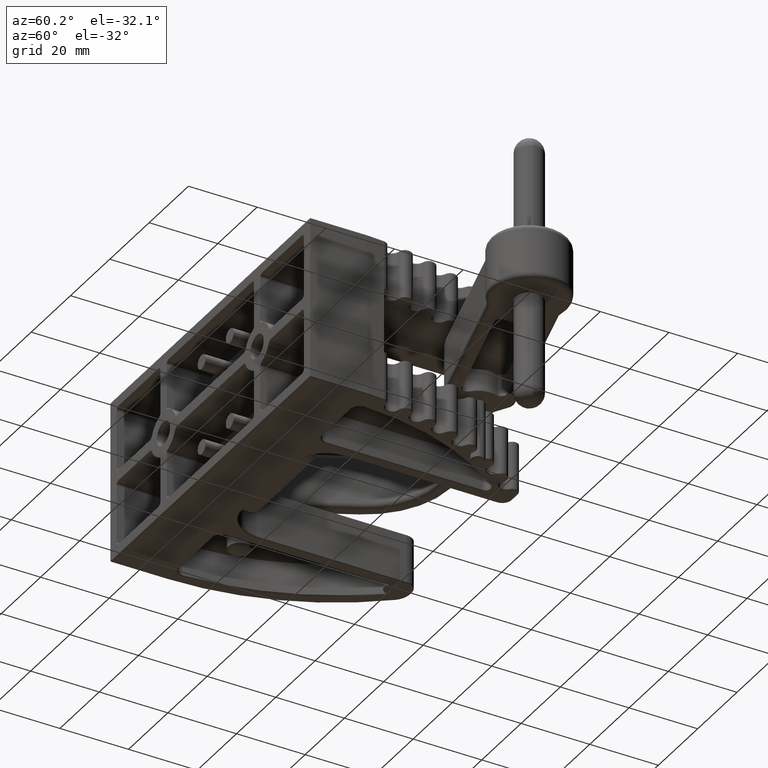
[diagram: clean part render]
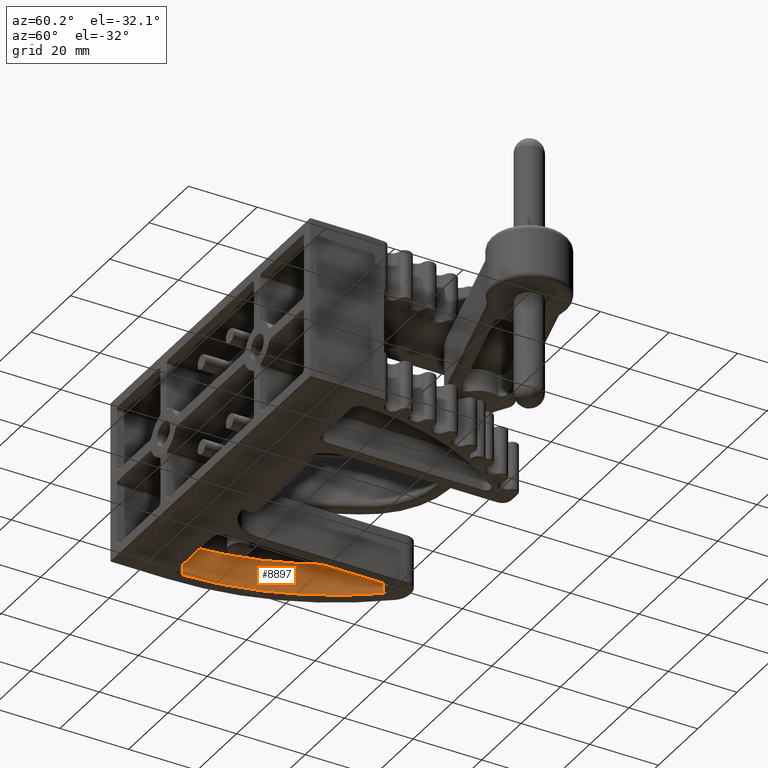
[diagram: same view with one face highlighted and labeled with its STEP entity id]
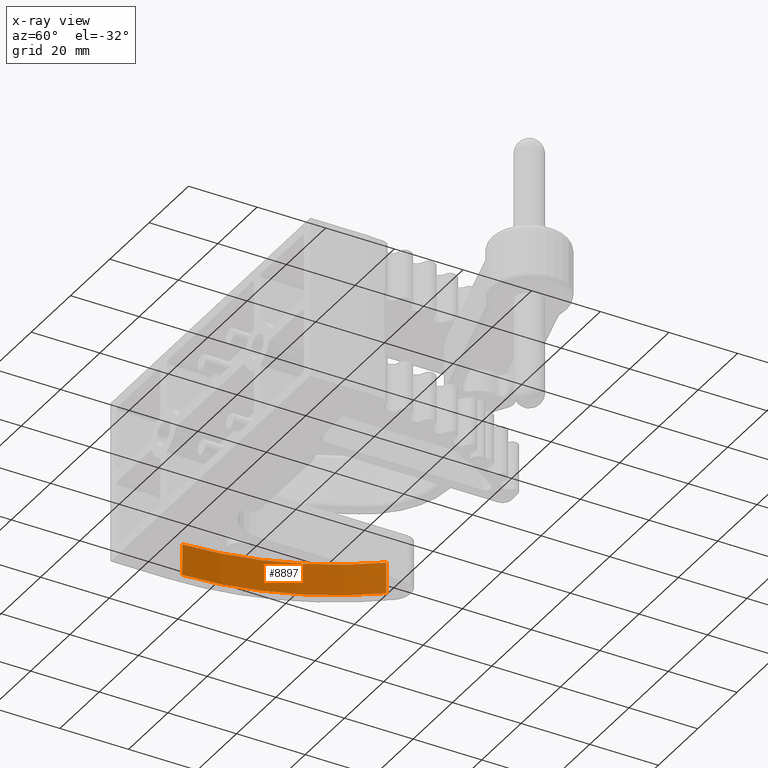
[diagram: x-ray of the same camera — body ghosted, the highlighted face saturated]
A machine part, auxiliary view. The second image highlights one B-rep face of the part: STEP entity #8897.
The next image is the same camera in x-ray: the body ghosted, the highlighted face saturated — about 0% of this face is hidden behind the body in this view.
In plain terms, the highlighted cylindrical surface (partial cylindrical patch) has radius 82.3754 mm, axis along (-0, -0, -1).
Its self-contained STEP definition (entity closure, byte-faithful):
#205 = AXIS2_PLACEMENT_3D ( 'NONE', #24128, #3575, #5852 ) ;
#2331 = VERTEX_POINT ( 'NONE', #9374 ) ;
#3575 = DIRECTION ( 'NONE',  ( -0.0000000000000000000, -0.0000000000000000000, -1.000000000000000000 ) ) ;
#4452 = CYLINDRICAL_SURFACE ( 'NONE', #205, 3.243124999999997400 ) ;
#4776 = ORIENTED_EDGE ( 'NONE', *, *, #24144, .F. ) ;
#4852 = ORIENTED_EDGE ( 'NONE', *, *, #7454, .T. ) ;
#5173 = CARTESIAN_POINT ( 'NONE',  ( -1.873562778400978100, 0.7525407322881523300, -0.5625000000000000000 ) ) ;
#5174 = DIRECTION ( 'NONE',  ( -0.0000000000000000000, -0.0000000000000000000, -1.000000000000000000 ) ) ;
#5233 = EDGE_LOOP ( 'NONE', ( #4852, #23419, #4776, #11330 ) ) ;
#5753 = EDGE_CURVE ( 'NONE', #24070, #2331, #22621, .T. ) ;
#5852 = DIRECTION ( 'NONE',  ( -1.000000000000000000, 0.0000000000000000000, 0.0000000000000000000 ) ) ;
#6471 = LINE ( 'NONE', #5173, #23977 ) ;
#6531 = DIRECTION ( 'NONE',  ( -0.0000000000000000000, -0.0000000000000000000, 1.000000000000000000 ) ) ;
#7454 = EDGE_CURVE ( 'NONE', #7753, #24070, #6471, .T. ) ;
#7588 = CARTESIAN_POINT ( 'NONE',  ( -1.873562778400978100, 0.7525407322881523300, -0.9218749999999998900 ) ) ;
#7753 = VERTEX_POINT ( 'NONE', #22975 ) ;
#7878 = AXIS2_PLACEMENT_3D ( 'NONE', #18888, #5174, #21154 ) ;
#8897 = ADVANCED_FACE ( 'NONE', ( #11224 ), #4452, .F. ) ;
#9374 = CARTESIAN_POINT ( 'NONE',  ( -1.161548471509502800, 2.685436348636255600, -0.9218749999999998900 ) ) ;
#11224 = FACE_OUTER_BOUND ( 'NONE', #5233, .T. ) ;
#11330 = ORIENTED_EDGE ( 'NONE', *, *, #13210, .T. ) ;
#11425 = LINE ( 'NONE', #12277, #27492 ) ;
#12277 = CARTESIAN_POINT ( 'NONE',  ( -1.161548471509502800, 2.685436348636255600, -0.5625000000000000000 ) ) ;
#13210 = EDGE_CURVE ( 'NONE', #15874, #7753, #21981, .T. ) ;
#15874 = VERTEX_POINT ( 'NONE', #28138 ) ;
#18888 = CARTESIAN_POINT ( 'NONE',  ( 1.368124999999995600, 0.6559999999999964700, -0.9218750000000000000 ) ) ;
#20215 = CARTESIAN_POINT ( 'NONE',  ( 1.368124999999995600, 0.6559999999999964700, -0.5625000000000000000 ) ) ;
#21154 = DIRECTION ( 'NONE',  ( 1.000000000000000000, 0.0000000000000000000, 0.0000000000000000000 ) ) ;
#21981 = CIRCLE ( 'NONE', #28550, 3.243124999999997400 ) ;
#22524 = DIRECTION ( 'NONE',  ( 1.000000000000000000, 0.0000000000000000000, 0.0000000000000000000 ) ) ;
#22621 = CIRCLE ( 'NONE', #7878, 3.243124999999997400 ) ;
#22975 = CARTESIAN_POINT ( 'NONE',  ( -1.873562778400978100, 0.7525407322881523300, -0.5625000000000000000 ) ) ;
#23419 = ORIENTED_EDGE ( 'NONE', *, *, #5753, .T. ) ;
#23977 = VECTOR ( 'NONE', #27932, 39.37007874015748100 ) ;
#24070 = VERTEX_POINT ( 'NONE', #7588 ) ;
#24128 = CARTESIAN_POINT ( 'NONE',  ( 1.368124999999995600, 0.6559999999999964700, -0.5625000000000000000 ) ) ;
#24144 = EDGE_CURVE ( 'NONE', #15874, #2331, #11425, .T. ) ;
#27492 = VECTOR ( 'NONE', #28339, 39.37007874015748100 ) ;
#27932 = DIRECTION ( 'NONE',  ( -0.0000000000000000000, -0.0000000000000000000, -1.000000000000000000 ) ) ;
#28138 = CARTESIAN_POINT ( 'NONE',  ( -1.161548471509502800, 2.685436348636255600, -0.5625000000000000000 ) ) ;
#28339 = DIRECTION ( 'NONE',  ( -0.0000000000000000000, -0.0000000000000000000, -1.000000000000000000 ) ) ;
#28550 = AXIS2_PLACEMENT_3D ( 'NONE', #20215, #6531, #22524 ) ;